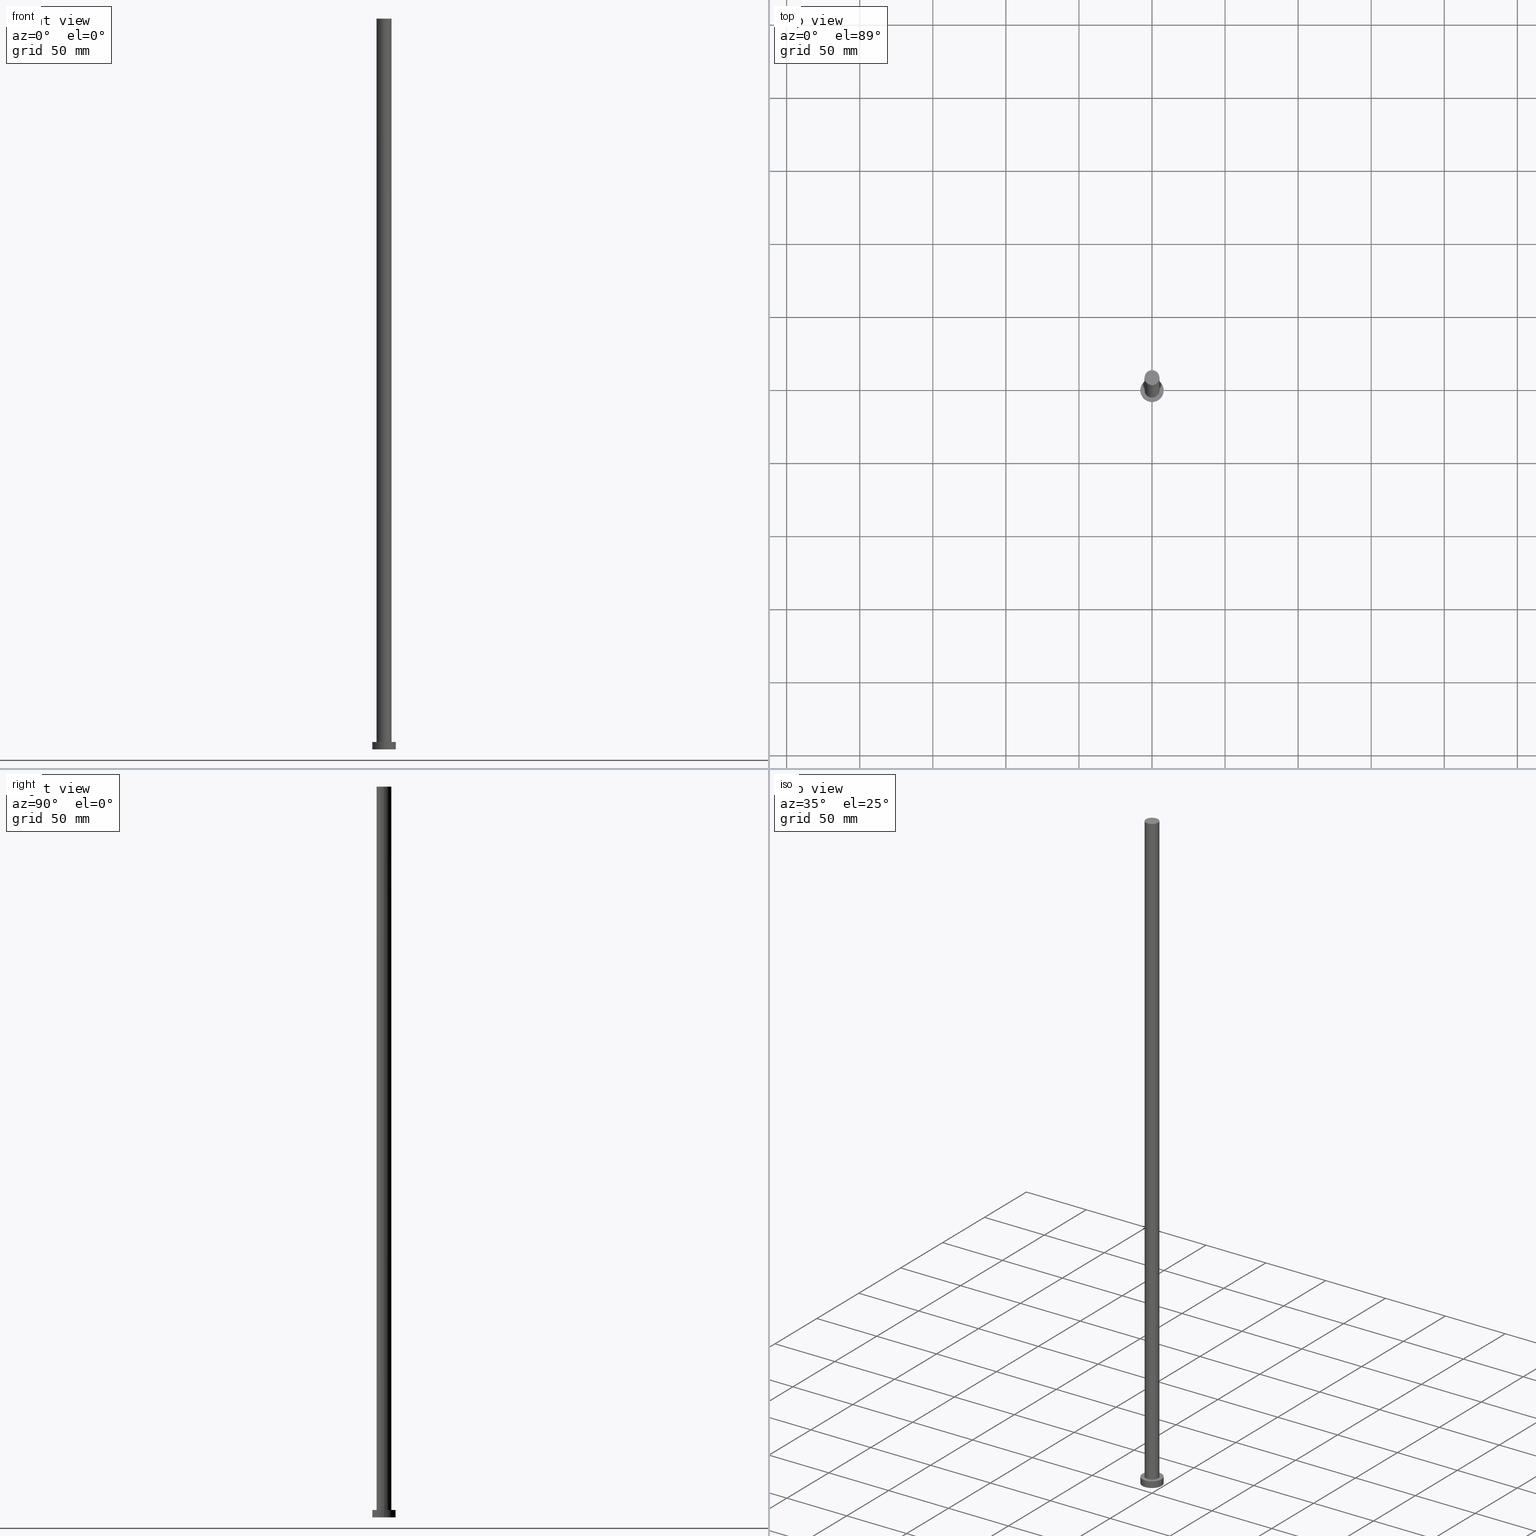
[diagram: canonical four-view strip — front | top / right | iso, engineering-drawing reading convention]
A machine part, canonical four-view strip (front | top / right | iso — engineering-drawing reading convention). The complete STEP part file that produces these views, byte-faithful:
ISO-10303-21;
HEADER;
FILE_DESCRIPTION (( 'STEP AP203' ),
    '1' );
FILE_NAME ('9973.STEP',
    '2023-02-12T11:24:02',
    ( '' ),
    ( '' ),
    'SwSTEP 2.0',
    'SolidWorks 2019',
    '' );
FILE_SCHEMA (( 'CONFIG_CONTROL_DESIGN' ));
ENDSEC;

DATA;
#1 = ORIENTED_EDGE ( 'NONE', *, *, #2, .F. ) ;
#2 = EDGE_CURVE ( 'NONE', #224, #132, #57, .T. ) ;
#3 = ORIENTED_EDGE ( 'NONE', *, *, #158, .F. ) ;
#4 = EDGE_LOOP ( 'NONE', ( #3, #247 ) ) ;
#5 = DIRECTION ( 'NONE',  ( 0.000000000000000000, 0.000000000000000000, 1.000000000000000000 ) ) ;
#6 = COORDINATED_UNIVERSAL_TIME_OFFSET ( 1, 0, .AHEAD. ) ;
#7 = ADVANCED_FACE ( 'NONE', ( #156 ), #114, .T. ) ;
#8 = DIRECTION ( 'NONE',  ( 1.000000000000000000, 0.000000000000000000, -0.000000000000000000 ) ) ;
#9 = ADVANCED_BREP_SHAPE_REPRESENTATION ( '9973', ( #243, #246 ), #157 ) ;
#10 = CARTESIAN_POINT ( 'NONE',  ( 0.000000000000000000, 0.000000000000000000, 5.000000000000000000 ) ) ;
#11 = ORIENTED_EDGE ( 'NONE', *, *, #158, .T. ) ;
#12 = CIRCLE ( 'NONE', #254, 8.000000000000000000 ) ;
#13 = DIRECTION ( 'NONE',  ( 0.000000000000000000, 0.000000000000000000, 1.000000000000000000 ) ) ;
#14 = ADVANCED_FACE ( 'NONE', ( #51 ), #138, .T. ) ;
#15 =( NAMED_UNIT ( * ) SI_UNIT ( $, .STERADIAN. ) SOLID_ANGLE_UNIT ( ) );
#16 = DIRECTION ( 'NONE',  ( -0.000000000000000000, -0.000000000000000000, -1.000000000000000000 ) ) ;
#17 = AXIS2_PLACEMENT_3D ( 'NONE', #115, #176, #90 ) ;
#18 = AXIS2_PLACEMENT_3D ( 'NONE', #249, #16, #101 ) ;
#19 = APPLICATION_CONTEXT ( 'configuration controlled 3d designs of mechanical parts and assemblies' ) ;
#20 = EDGE_CURVE ( 'NONE', #193, #248, #155, .T. ) ;
#21 = CALENDAR_DATE ( 2023, 12, 2 ) ;
#22 = FACE_OUTER_BOUND ( 'NONE', #47, .T. ) ;
#23 = DATE_TIME_ROLE ( 'creation_date' ) ;
#24 = ORIENTED_EDGE ( 'NONE', *, *, #255, .T. ) ;
#25 = CALENDAR_DATE ( 2023, 12, 2 ) ;
#26 = ORIENTED_EDGE ( 'NONE', *, *, #98, .F. ) ;
#27 = DIRECTION ( 'NONE',  ( -0.000000000000000000, -0.000000000000000000, -1.000000000000000000 ) ) ;
#28 = CC_DESIGN_APPROVAL ( #152, ( #184 ) ) ;
#29 = DIRECTION ( 'NONE',  ( 1.000000000000000000, 0.000000000000000000, 0.000000000000000000 ) ) ;
#30 = CYLINDRICAL_SURFACE ( 'NONE', #18, 8.000000000000000000 ) ;
#31 = ORIENTED_EDGE ( 'NONE', *, *, #20, .F. ) ;
#32 = APPROVAL_PERSON_ORGANIZATION ( #87, #128, #206 ) ;
#33 = LINE ( 'NONE', #161, #109 ) ;
#34 = EDGE_CURVE ( 'NONE', #224, #212, #33, .T. ) ;
#35 = AXIS2_PLACEMENT_3D ( 'NONE', #240, #245, #94 ) ;
#36 = AXIS2_PLACEMENT_3D ( 'NONE', #85, #226, #167 ) ;
#37 = APPROVAL_STATUS ( 'not_yet_approved' ) ;
#38 = CARTESIAN_POINT ( 'NONE',  ( 0.000000000000000000, 0.000000000000000000, 0.000000000000000000 ) ) ;
#39 = DATE_AND_TIME ( #21, #41 ) ;
#40 = PERSON_AND_ORGANIZATION_ROLE ( 'design_owner' ) ;
#41 = LOCAL_TIME ( 12, 24, 2.000000000000000000, #105 ) ;
#42 = DIRECTION ( 'NONE',  ( 1.000000000000000000, 0.000000000000000000, 0.000000000000000000 ) ) ;
#43 = APPROVAL_DATE_TIME ( #39, #128 ) ;
#44 = PLANE ( 'NONE',  #93 ) ;
#45 = VERTEX_POINT ( 'NONE', #196 ) ;
#46 = PERSON_AND_ORGANIZATION ( #99, #129 ) ;
#47 = EDGE_LOOP ( 'NONE', ( #211, #70 ) ) ;
#48 = APPROVAL_STATUS ( 'not_yet_approved' ) ;
#49 = AXIS2_PLACEMENT_3D ( 'NONE', #118, #198, #8 ) ;
#50 = DIRECTION ( 'NONE',  ( -0.000000000000000000, -0.000000000000000000, -1.000000000000000000 ) ) ;
#51 = FACE_OUTER_BOUND ( 'NONE', #76, .T. ) ;
#52 = ADVANCED_FACE ( 'NONE', ( #143, #141 ), #230, .T. ) ;
#53 = APPROVAL_ROLE ( '' ) ;
#54 = CARTESIAN_POINT ( 'NONE',  ( 0.000000000000000000, 0.000000000000000000, 5.000000000000000000 ) ) ;
#55 = AXIS2_PLACEMENT_3D ( 'NONE', #204, #253, #215 ) ;
#56 = ORIENTED_EDGE ( 'NONE', *, *, #136, .F. ) ;
#57 = CIRCLE ( 'NONE', #17, 8.000000000000000000 ) ;
#58 = EDGE_CURVE ( 'NONE', #132, #224, #233, .T. ) ;
#59 = FACE_OUTER_BOUND ( 'NONE', #73, .T. ) ;
#60 = MECHANICAL_CONTEXT ( 'NONE', #19, 'mechanical' ) ;
#61 = CYLINDRICAL_SURFACE ( 'NONE', #36, 5.100000000000001421 ) ;
#62 = AXIS2_PLACEMENT_3D ( 'NONE', #10, #5, #223 ) ;
#63 = EDGE_CURVE ( 'NONE', #45, #193, #252, .T. ) ;
#64 = SECURITY_CLASSIFICATION_LEVEL ( 'unclassified' ) ;
#65 = SECURITY_CLASSIFICATION ( '', '', #64 ) ;
#66 = DIRECTION ( 'NONE',  ( -1.000000000000000000, 0.000000000000000000, 0.000000000000000000 ) ) ;
#67 = PERSON_AND_ORGANIZATION_ROLE ( 'creator' ) ;
#68 = CARTESIAN_POINT ( 'NONE',  ( -8.000000000000000000, 0.000000000000000000, 5.000000000000000000 ) ) ;
#69 = PRODUCT_RELATED_PRODUCT_CATEGORY ( 'detail', '', ( #126 ) ) ;
#70 = ORIENTED_EDGE ( 'NONE', *, *, #98, .T. ) ;
#71 = CARTESIAN_POINT ( 'NONE',  ( 0.000000000000000000, 0.000000000000000000, 0.000000000000000000 ) ) ;
#72 = ORIENTED_EDGE ( 'NONE', *, *, #58, .F. ) ;
#73 = EDGE_LOOP ( 'NONE', ( #197, #159 ) ) ;
#74 = VECTOR ( 'NONE', #50, 1000.000000000000000 ) ;
#75 = APPROVAL_PERSON_ORGANIZATION ( #177, #103, #53 ) ;
#76 = EDGE_LOOP ( 'NONE', ( #26, #242, #221, #160 ) ) ;
#77 = CC_DESIGN_DATE_AND_TIME_ASSIGNMENT ( #135, #117, ( #65 ) ) ;
#78 = PLANE ( 'NONE',  #49 ) ;
#79 = FACE_OUTER_BOUND ( 'NONE', #214, .T. ) ;
#80 = LOCAL_TIME ( 12, 24, 2.000000000000000000, #131 ) ;
#81 = DIRECTION ( 'NONE',  ( 0.000000000000000000, 0.000000000000000000, 1.000000000000000000 ) ) ;
#82 = PRODUCT_DEFINITION ( 'NEZN�M�', '', #184, #202 ) ;
#83 = CARTESIAN_POINT ( 'NONE',  ( 0.000000000000000000, 0.000000000000000000, 5.000000000000000000 ) ) ;
#84 = CARTESIAN_POINT ( 'NONE',  ( -5.100000000000001421, 0.000000000000000000, 500.0000000000000000 ) ) ;
#85 = CARTESIAN_POINT ( 'NONE',  ( 0.000000000000000000, 0.000000000000000000, 500.0000000000000000 ) ) ;
#86 = PERSON_AND_ORGANIZATION ( #99, #129 ) ;
#87 = PERSON_AND_ORGANIZATION ( #99, #129 ) ;
#88 = ADVANCED_FACE ( 'NONE', ( #59 ), #78, .F. ) ;
#89 = EDGE_LOOP ( 'NONE', ( #134, #123 ) ) ;
#90 = DIRECTION ( 'NONE',  ( 1.000000000000000000, 0.000000000000000000, 0.000000000000000000 ) ) ;
#91 = CALENDAR_DATE ( 2023, 12, 2 ) ;
#92 = CC_DESIGN_PERSON_AND_ORGANIZATION_ASSIGNMENT ( #169, #235, ( #184 ) ) ;
#93 = AXIS2_PLACEMENT_3D ( 'NONE', #133, #174, #241 ) ;
#94 = DIRECTION ( 'NONE',  ( -1.000000000000000000, 0.000000000000000000, 0.000000000000000000 ) ) ;
#95 = CLOSED_SHELL ( 'NONE', ( #14, #7, #110, #52, #88, #149, #222 ) ) ;
#96 = DIRECTION ( 'NONE',  ( 0.000000000000000000, 0.000000000000000000, 1.000000000000000000 ) ) ;
#97 = CARTESIAN_POINT ( 'NONE',  ( 0.000000000000000000, 0.000000000000000000, 500.0000000000000000 ) ) ;
#98 = EDGE_CURVE ( 'NONE', #193, #45, #183, .T. ) ;
#99 = PERSON ( 'NEUR�EN�', 'NEUR�EN�', 'NEUR�EN�', ('NEUR�EN�'), ('NEUR�EN�'), ('NEUR�EN�') ) ;
#100 = DIRECTION ( 'NONE',  ( 1.000000000000000000, 0.000000000000000000, 0.000000000000000000 ) ) ;
#101 = DIRECTION ( 'NONE',  ( -1.000000000000000000, 0.000000000000000000, 0.000000000000000000 ) ) ;
#102 = APPLICATION_PROTOCOL_DEFINITION ( 'international standard', 'config_control_design', 1994, #19 ) ;
#103 = APPROVAL ( #48, 'NEUR�EN�' ) ;
#104 = CARTESIAN_POINT ( 'NONE',  ( -5.100000000000001421, 0.000000000000000000, 5.000000000000000000 ) ) ;
#105 = COORDINATED_UNIVERSAL_TIME_OFFSET ( 1, 0, .AHEAD. ) ;
#106 = LOCAL_TIME ( 12, 24, 2.000000000000000000, #151 ) ;
#107 = CARTESIAN_POINT ( 'NONE',  ( 5.100000000000001421, 6.245698675651502811E-16, 500.0000000000000000 ) ) ;
#108 = DATE_AND_TIME ( #112, #153 ) ;
#109 = VECTOR ( 'NONE', #199, 1000.000000000000000 ) ;
#110 = ADVANCED_FACE ( 'NONE', ( #220 ), #30, .T. ) ;
#111 = ORIENTED_EDGE ( 'NONE', *, *, #136, .T. ) ;
#112 = CALENDAR_DATE ( 2023, 12, 2 ) ;
#113 = CC_DESIGN_SECURITY_CLASSIFICATION ( #65, ( #184 ) ) ;
#114 = CYLINDRICAL_SURFACE ( 'NONE', #35, 8.000000000000000000 ) ;
#115 = CARTESIAN_POINT ( 'NONE',  ( 0.000000000000000000, 0.000000000000000000, 5.000000000000000000 ) ) ;
#116 = ORIENTED_EDGE ( 'NONE', *, *, #34, .F. ) ;
#117 = DATE_TIME_ROLE ( 'classification_date' ) ;
#118 = CARTESIAN_POINT ( 'NONE',  ( 0.000000000000000000, 0.000000000000000000, 0.000000000000000000 ) ) ;
#119 = CC_DESIGN_DATE_AND_TIME_ASSIGNMENT ( #225, #23, ( #82 ) ) ;
#120 = CARTESIAN_POINT ( 'NONE',  ( 5.100000000000001421, 6.245698675651502811E-16, 500.0000000000000000 ) ) ;
#121 = ORIENTED_EDGE ( 'NONE', *, *, #34, .T. ) ;
#122 = AXIS2_PLACEMENT_3D ( 'NONE', #83, #234, #150 ) ;
#123 = ORIENTED_EDGE ( 'NONE', *, *, #58, .T. ) ;
#124 = CARTESIAN_POINT ( 'NONE',  ( 5.100000000000001421, 6.245698675651502811E-16, 5.000000000000000000 ) ) ;
#125 = CARTESIAN_POINT ( 'NONE',  ( 8.000000000000000000, 9.797174393178825657E-16, 0.000000000000000000 ) ) ;
#126 = PRODUCT ( '9973', '9973', '', ( #60 ) ) ;
#127 = APPROVAL_DATE_TIME ( #108, #152 ) ;
#128 = APPROVAL ( #172, 'NEUR�EN�' ) ;
#129 = ORGANIZATION ( 'NEUR�EN�', 'NEUR�EN�', '' ) ;
#130 = DIRECTION ( 'NONE',  ( 0.000000000000000000, 0.000000000000000000, 1.000000000000000000 ) ) ;
#131 = COORDINATED_UNIVERSAL_TIME_OFFSET ( 1, 0, .AHEAD. ) ;
#132 = VERTEX_POINT ( 'NONE', #231 ) ;
#133 = CARTESIAN_POINT ( 'NONE',  ( 0.000000000000000000, 0.000000000000000000, 500.0000000000000000 ) ) ;
#134 = ORIENTED_EDGE ( 'NONE', *, *, #2, .T. ) ;
#135 = DATE_AND_TIME ( #25, #106 ) ;
#136 = EDGE_CURVE ( 'NONE', #132, #154, #179, .T. ) ;
#137 = AXIS2_PLACEMENT_3D ( 'NONE', #232, #96, #178 ) ;
#138 = CYLINDRICAL_SURFACE ( 'NONE', #209, 5.100000000000001421 ) ;
#139 = CIRCLE ( 'NONE', #122, 5.100000000000001421 ) ;
#140 = APPROVAL_DATE_TIME ( #175, #103 ) ;
#141 = FACE_OUTER_BOUND ( 'NONE', #89, .T. ) ;
#142 = ORIENTED_EDGE ( 'NONE', *, *, #182, .T. ) ;
#143 = FACE_BOUND ( 'NONE', #4, .T. ) ;
#144 = CC_DESIGN_PERSON_AND_ORGANIZATION_ASSIGNMENT ( #170, #238, ( #65 ) ) ;
#145 = CARTESIAN_POINT ( 'NONE',  ( 8.000000000000000000, 9.797174393178825657E-16, 5.000000000000000000 ) ) ;
#146 =( NAMED_UNIT ( * ) PLANE_ANGLE_UNIT ( ) SI_UNIT ( $, .RADIAN. ) );
#147 = LOCAL_TIME ( 12, 24, 2.000000000000000000, #6 ) ;
#148 = PERSON_AND_ORGANIZATION ( #99, #129 ) ;
#149 = ADVANCED_FACE ( 'NONE', ( #79 ), #61, .T. ) ;
#150 = DIRECTION ( 'NONE',  ( 1.000000000000000000, 0.000000000000000000, 0.000000000000000000 ) ) ;
#151 = COORDINATED_UNIVERSAL_TIME_OFFSET ( 1, 0, .AHEAD. ) ;
#152 = APPROVAL ( #37, 'NEUR�EN�' ) ;
#153 = LOCAL_TIME ( 12, 24, 2.000000000000000000, #208 ) ;
#154 = VERTEX_POINT ( 'NONE', #125 ) ;
#155 = LINE ( 'NONE', #120, #189 ) ;
#156 = FACE_OUTER_BOUND ( 'NONE', #244, .T. ) ;
#157 =( GEOMETRIC_REPRESENTATION_CONTEXT ( 3 ) GLOBAL_UNCERTAINTY_ASSIGNED_CONTEXT ( ( #162 ) ) GLOBAL_UNIT_ASSIGNED_CONTEXT ( ( #181, #146, #15 ) ) REPRESENTATION_CONTEXT ( 'NONE', 'WORKASPACE' ) );
#158 = EDGE_CURVE ( 'NONE', #229, #248, #139, .T. ) ;
#159 = ORIENTED_EDGE ( 'NONE', *, *, #195, .F. ) ;
#160 = ORIENTED_EDGE ( 'NONE', *, *, #255, .F. ) ;
#161 = CARTESIAN_POINT ( 'NONE',  ( -8.000000000000000000, 0.000000000000000000, 5.000000000000000000 ) ) ;
#162 = UNCERTAINTY_MEASURE_WITH_UNIT (LENGTH_MEASURE( 1.000000000000000082E-05 ), #181, 'distance_accuracy_value', 'NONE');
#163 = APPLICATION_CONTEXT ( 'configuration controlled 3d designs of mechanical parts and assemblies' ) ;
#164 = ORIENTED_EDGE ( 'NONE', *, *, #195, .T. ) ;
#165 = DIRECTION ( 'NONE',  ( -0.000000000000000000, -0.000000000000000000, -1.000000000000000000 ) ) ;
#166 = DIRECTION ( 'NONE',  ( 1.000000000000000000, 0.000000000000000000, 0.000000000000000000 ) ) ;
#167 = DIRECTION ( 'NONE',  ( -1.000000000000000000, 0.000000000000000000, 0.000000000000000000 ) ) ;
#168 = CC_DESIGN_APPROVAL ( #103, ( #65 ) ) ;
#169 = PERSON_AND_ORGANIZATION ( #99, #129 ) ;
#170 = PERSON_AND_ORGANIZATION ( #99, #129 ) ;
#171 = APPROVAL_ROLE ( '' ) ;
#172 = APPROVAL_STATUS ( 'not_yet_approved' ) ;
#173 = CIRCLE ( 'NONE', #250, 8.000000000000000000 ) ;
#174 = DIRECTION ( 'NONE',  ( 0.000000000000000000, 0.000000000000000000, 1.000000000000000000 ) ) ;
#175 = DATE_AND_TIME ( #91, #147 ) ;
#176 = DIRECTION ( 'NONE',  ( 0.000000000000000000, 0.000000000000000000, 1.000000000000000000 ) ) ;
#177 = PERSON_AND_ORGANIZATION ( #99, #129 ) ;
#178 = DIRECTION ( 'NONE',  ( 1.000000000000000000, 0.000000000000000000, 0.000000000000000000 ) ) ;
#179 = LINE ( 'NONE', #145, #203 ) ;
#180 = PRODUCT_DEFINITION_SHAPE ( 'NONE', 'NONE',  #82 ) ;
#181 =( LENGTH_UNIT ( ) NAMED_UNIT ( * ) SI_UNIT ( .MILLI., .METRE. ) );
#182 = EDGE_CURVE ( 'NONE', #212, #154, #173, .T. ) ;
#183 = CIRCLE ( 'NONE', #137, 5.100000000000001421 ) ;
#184 = PRODUCT_DEFINITION_FORMATION_WITH_SPECIFIED_SOURCE ( 'LIBOVOLN�', '', #126, .NOT_KNOWN. ) ;
#185 = LINE ( 'NONE', #84, #74 ) ;
#186 = PERSON_AND_ORGANIZATION_ROLE ( 'design_supplier' ) ;
#187 = DIRECTION ( 'NONE',  ( 0.000000000000000000, 0.000000000000000000, 1.000000000000000000 ) ) ;
#188 = CC_DESIGN_PERSON_AND_ORGANIZATION_ASSIGNMENT ( #205, #186, ( #184 ) ) ;
#189 = VECTOR ( 'NONE', #201, 1000.000000000000000 ) ;
#190 = CIRCLE ( 'NONE', #55, 5.100000000000001421 ) ;
#191 = AXIS2_PLACEMENT_3D ( 'NONE', #54, #13, #29 ) ;
#192 = ORIENTED_EDGE ( 'NONE', *, *, #63, .F. ) ;
#193 = VERTEX_POINT ( 'NONE', #107 ) ;
#194 = CC_DESIGN_APPROVAL ( #128, ( #82 ) ) ;
#195 = EDGE_CURVE ( 'NONE', #154, #212, #12, .T. ) ;
#196 = CARTESIAN_POINT ( 'NONE',  ( -5.100000000000001421, 0.000000000000000000, 500.0000000000000000 ) ) ;
#197 = ORIENTED_EDGE ( 'NONE', *, *, #182, .F. ) ;
#198 = DIRECTION ( 'NONE',  ( 0.000000000000000000, 0.000000000000000000, 1.000000000000000000 ) ) ;
#199 = DIRECTION ( 'NONE',  ( -0.000000000000000000, -0.000000000000000000, -1.000000000000000000 ) ) ;
#200 = CC_DESIGN_PERSON_AND_ORGANIZATION_ASSIGNMENT ( #148, #67, ( #82 ) ) ;
#201 = DIRECTION ( 'NONE',  ( -0.000000000000000000, -0.000000000000000000, -1.000000000000000000 ) ) ;
#202 = DESIGN_CONTEXT ( 'detailed design', #163, 'design' ) ;
#203 = VECTOR ( 'NONE', #165, 1000.000000000000000 ) ;
#204 = CARTESIAN_POINT ( 'NONE',  ( 0.000000000000000000, 0.000000000000000000, 5.000000000000000000 ) ) ;
#205 = PERSON_AND_ORGANIZATION ( #99, #129 ) ;
#206 = APPROVAL_ROLE ( '' ) ;
#207 = CARTESIAN_POINT ( 'NONE',  ( -8.000000000000000000, 0.000000000000000000, 0.000000000000000000 ) ) ;
#208 = COORDINATED_UNIVERSAL_TIME_OFFSET ( 1, 0, .AHEAD. ) ;
#209 = AXIS2_PLACEMENT_3D ( 'NONE', #216, #27, #66 ) ;
#210 = CALENDAR_DATE ( 2023, 12, 2 ) ;
#211 = ORIENTED_EDGE ( 'NONE', *, *, #63, .T. ) ;
#212 = VERTEX_POINT ( 'NONE', #207 ) ;
#213 = SHAPE_DEFINITION_REPRESENTATION ( #180, #9 ) ;
#214 = EDGE_LOOP ( 'NONE', ( #31, #192, #24, #11 ) ) ;
#215 = DIRECTION ( 'NONE',  ( 1.000000000000000000, 0.000000000000000000, 0.000000000000000000 ) ) ;
#216 = CARTESIAN_POINT ( 'NONE',  ( 0.000000000000000000, 0.000000000000000000, 500.0000000000000000 ) ) ;
#217 = EDGE_LOOP ( 'NONE', ( #56, #1, #121, #142 ) ) ;
#218 = APPROVAL_PERSON_ORGANIZATION ( #46, #152, #171 ) ;
#219 = DIRECTION ( 'NONE',  ( 0.000000000000000000, 0.000000000000000000, 1.000000000000000000 ) ) ;
#220 = FACE_OUTER_BOUND ( 'NONE', #217, .T. ) ;
#221 = ORIENTED_EDGE ( 'NONE', *, *, #236, .T. ) ;
#222 = ADVANCED_FACE ( 'NONE', ( #22 ), #44, .T. ) ;
#223 = DIRECTION ( 'NONE',  ( 1.000000000000000000, 0.000000000000000000, -0.000000000000000000 ) ) ;
#224 = VERTEX_POINT ( 'NONE', #68 ) ;
#225 = DATE_AND_TIME ( #210, #80 ) ;
#226 = DIRECTION ( 'NONE',  ( -0.000000000000000000, -0.000000000000000000, -1.000000000000000000 ) ) ;
#227 = CC_DESIGN_PERSON_AND_ORGANIZATION_ASSIGNMENT ( #86, #40, ( #126 ) ) ;
#228 = APPLICATION_PROTOCOL_DEFINITION ( 'international standard', 'config_control_design', 1994, #163 ) ;
#229 = VERTEX_POINT ( 'NONE', #104 ) ;
#230 = PLANE ( 'NONE',  #62 ) ;
#231 = CARTESIAN_POINT ( 'NONE',  ( 8.000000000000000000, 9.797174393178825657E-16, 5.000000000000000000 ) ) ;
#232 = CARTESIAN_POINT ( 'NONE',  ( 0.000000000000000000, 0.000000000000000000, 500.0000000000000000 ) ) ;
#233 = CIRCLE ( 'NONE', #191, 8.000000000000000000 ) ;
#234 = DIRECTION ( 'NONE',  ( 0.000000000000000000, 0.000000000000000000, 1.000000000000000000 ) ) ;
#235 = PERSON_AND_ORGANIZATION_ROLE ( 'creator' ) ;
#236 = EDGE_CURVE ( 'NONE', #248, #229, #190, .T. ) ;
#237 = DIRECTION ( 'NONE',  ( 1.000000000000000000, 0.000000000000000000, 0.000000000000000000 ) ) ;
#238 = PERSON_AND_ORGANIZATION_ROLE ( 'classification_officer' ) ;
#239 = AXIS2_PLACEMENT_3D ( 'NONE', #97, #219, #100 ) ;
#240 = CARTESIAN_POINT ( 'NONE',  ( 0.000000000000000000, 0.000000000000000000, 5.000000000000000000 ) ) ;
#241 = DIRECTION ( 'NONE',  ( 1.000000000000000000, 0.000000000000000000, -0.000000000000000000 ) ) ;
#242 = ORIENTED_EDGE ( 'NONE', *, *, #20, .T. ) ;
#243 = MANIFOLD_SOLID_BREP ( 'P�idat vysunut�m3', #95 ) ;
#244 = EDGE_LOOP ( 'NONE', ( #72, #111, #164, #116 ) ) ;
#245 = DIRECTION ( 'NONE',  ( -0.000000000000000000, -0.000000000000000000, -1.000000000000000000 ) ) ;
#246 = AXIS2_PLACEMENT_3D ( 'NONE', #251, #81, #166 ) ;
#247 = ORIENTED_EDGE ( 'NONE', *, *, #236, .F. ) ;
#248 = VERTEX_POINT ( 'NONE', #124 ) ;
#249 = CARTESIAN_POINT ( 'NONE',  ( 0.000000000000000000, 0.000000000000000000, 5.000000000000000000 ) ) ;
#250 = AXIS2_PLACEMENT_3D ( 'NONE', #38, #187, #237 ) ;
#251 = CARTESIAN_POINT ( 'NONE',  ( 0.000000000000000000, 0.000000000000000000, 0.000000000000000000 ) ) ;
#252 = CIRCLE ( 'NONE', #239, 5.100000000000001421 ) ;
#253 = DIRECTION ( 'NONE',  ( 0.000000000000000000, 0.000000000000000000, 1.000000000000000000 ) ) ;
#254 = AXIS2_PLACEMENT_3D ( 'NONE', #71, #130, #42 ) ;
#255 = EDGE_CURVE ( 'NONE', #45, #229, #185, .T. ) ;
ENDSEC;
END-ISO-10303-21;
